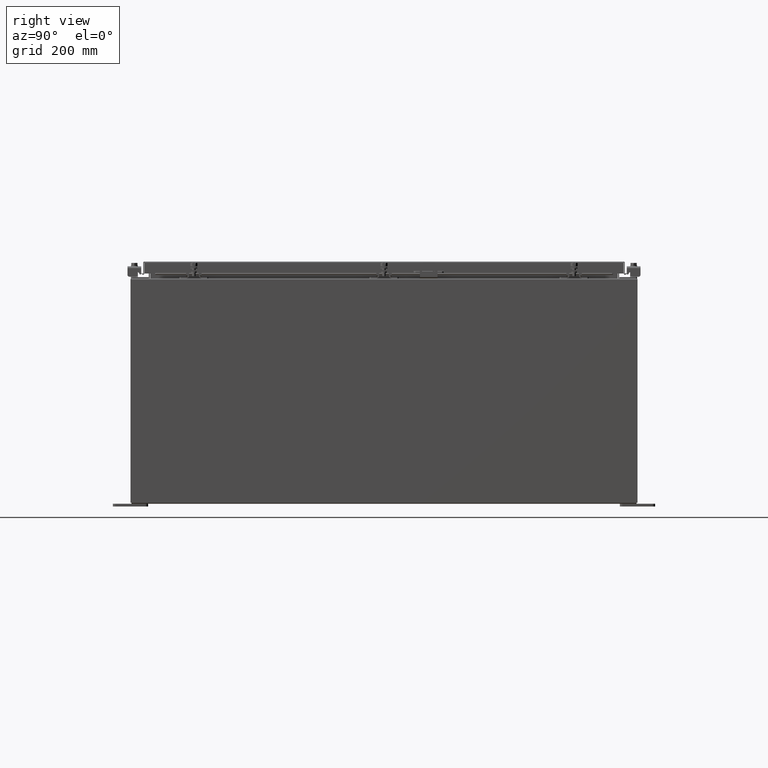
[diagram: clean part render]
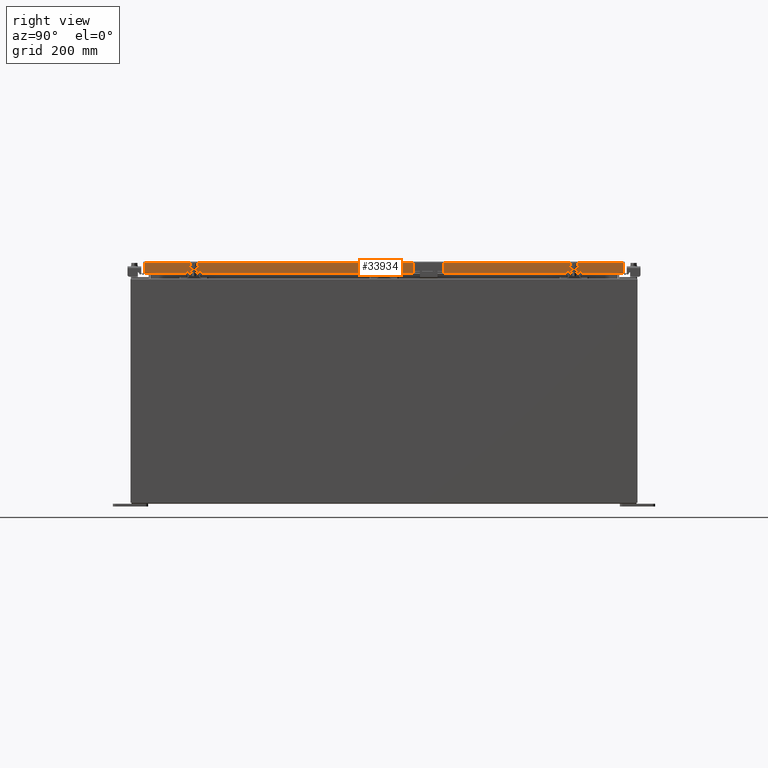
[diagram: same view with one face highlighted and labeled with its STEP entity id]
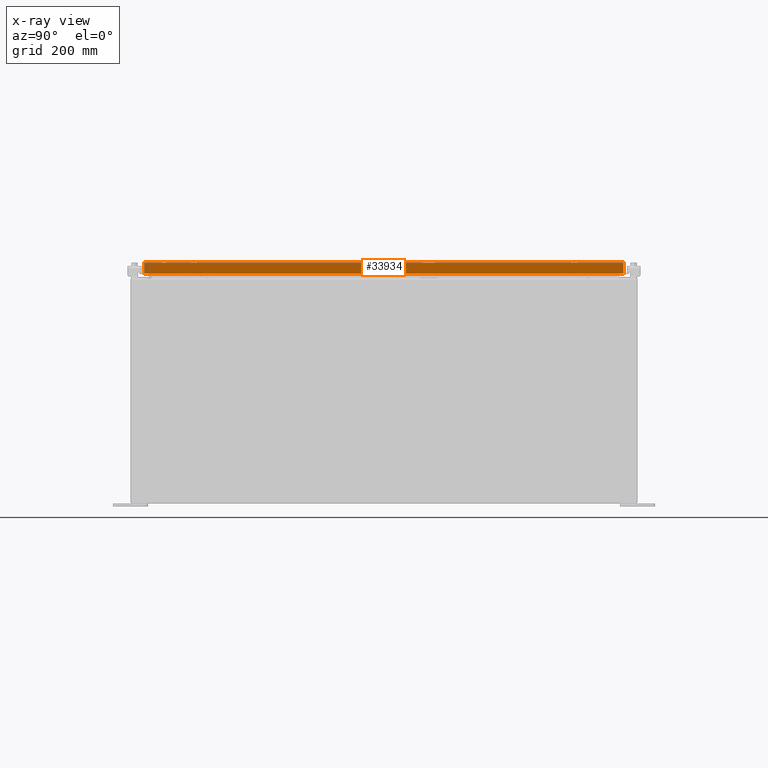
[diagram: x-ray of the same camera — body ghosted, the highlighted face saturated]
A machine part, right view. The second image highlights one B-rep face of the part: STEP entity #33934.
The next image is the same camera in x-ray: the body ghosted, the highlighted face saturated — about 0% of this face is hidden behind the body in this view.
In plain terms, the highlighted planar face has unit normal (1, 0, 0).
Its self-contained STEP definition (entity closure, byte-faithful):
#582 = CARTESIAN_POINT ( 'NONE',  ( 14.07799999999999400, 17.00515786437626900, -0.08770000000000007000 ) ) ;
#1304 = EDGE_CURVE ( 'NONE', #22524, #9837, #37705, .T. ) ;
#3148 = DIRECTION ( 'NONE',  ( -2.818880942772360500E-015, -6.982962677686269100E-015, 1.000000000000000000 ) ) ;
#4106 = LINE ( 'NONE', #15079, #11231 ) ;
#4121 = EDGE_CURVE ( 'NONE', #41310, #36156, #8388, .T. ) ;
#5482 = CARTESIAN_POINT ( 'NONE',  ( 14.07799999999998700, 16.25515786437628000, -0.8500000000000016400 ) ) ;
#7452 = AXIS2_PLACEMENT_3D ( 'NONE', #22898, #32721, #12801 ) ;
#8388 = LINE ( 'NONE', #27668, #18074 ) ;
#9306 = CARTESIAN_POINT ( 'NONE',  ( 14.07799999999998700, 16.25515786437627600, -0.8500000000000016400 ) ) ;
#9837 = VERTEX_POINT ( 'NONE', #32822 ) ;
#10901 = VECTOR ( 'NONE', #37356, 39.37007874015748100 ) ;
#11231 = VECTOR ( 'NONE', #38278, 39.37007874015748100 ) ;
#12801 = DIRECTION ( 'NONE',  ( 2.818880942772360100E-015, 0.0000000000000000000, -1.000000000000000000 ) ) ;
#13051 = CARTESIAN_POINT ( 'NONE',  ( 14.07799999999999400, -17.00515786437626900, -0.08770000000000007000 ) ) ;
#13076 = VECTOR ( 'NONE', #3148, 39.37007874015748100 ) ;
#14305 = ORIENTED_EDGE ( 'NONE', *, *, #38413, .F. ) ;
#14529 = CARTESIAN_POINT ( 'NONE',  ( 14.07799999999999600, -17.09400000000000100, -0.8499999999999996400 ) ) ;
#15079 = CARTESIAN_POINT ( 'NONE',  ( 14.07799999999999400, 0.0000000000000000000, -0.08770000000000007000 ) ) ;
#17212 = ORIENTED_EDGE ( 'NONE', *, *, #1304, .F. ) ;
#18074 = VECTOR ( 'NONE', #32000, 39.37007874015748100 ) ;
#19008 = ORIENTED_EDGE ( 'NONE', *, *, #28968, .F. ) ;
#19180 = EDGE_CURVE ( 'NONE', #41310, #22524, #19387, .T. ) ;
#19387 = LINE ( 'NONE', #14529, #10901 ) ;
#22259 = EDGE_LOOP ( 'NONE', ( #14305, #19008, #17212, #32618, #32697, #28660 ) ) ;
#22524 = VERTEX_POINT ( 'NONE', #9306 ) ;
#22898 = CARTESIAN_POINT ( 'NONE',  ( 14.07799999999999400, 0.0000000000000000000, 3.994501956836084300E-014 ) ) ;
#24605 = CARTESIAN_POINT ( 'NONE',  ( 14.07799999999999600, -17.09400000000000100, -0.8499999999999996400 ) ) ;
#24937 = DIRECTION ( 'NONE',  ( 0.0000000000000000000, -1.000000000000000000, 0.0000000000000000000 ) ) ;
#25987 = DIRECTION ( 'NONE',  ( 0.0000000000000000000, -1.000000000000000000, 0.0000000000000000000 ) ) ;
#27668 = CARTESIAN_POINT ( 'NONE',  ( 14.07799999999999400, 17.00515786437627200, 1.586914022634635000E-013 ) ) ;
#28660 = ORIENTED_EDGE ( 'NONE', *, *, #31096, .T. ) ;
#28968 = EDGE_CURVE ( 'NONE', #9837, #42706, #29688, .T. ) ;
#29481 = PLANE ( 'NONE',  #7452 ) ;
#29688 = LINE ( 'NONE', #24605, #37353 ) ;
#30773 = LINE ( 'NONE', #36805, #13076 ) ;
#31096 = EDGE_CURVE ( 'NONE', #36156, #36531, #4106, .T. ) ;
#32000 = DIRECTION ( 'NONE',  ( -2.818880942772360500E-015, -6.982962677686269100E-015, 1.000000000000000000 ) ) ;
#32618 = ORIENTED_EDGE ( 'NONE', *, *, #19180, .F. ) ;
#32697 = ORIENTED_EDGE ( 'NONE', *, *, #4121, .T. ) ;
#32721 = DIRECTION ( 'NONE',  ( 1.000000000000000000, 0.0000000000000000000, 2.818880942772360100E-015 ) ) ;
#32822 = CARTESIAN_POINT ( 'NONE',  ( 14.07799999999998700, -16.25515786437626500, -0.8500000000000016400 ) ) ;
#33934 = ADVANCED_FACE ( 'NONE', ( #38156 ), #29481, .T. ) ;
#36156 = VERTEX_POINT ( 'NONE', #582 ) ;
#36531 = VERTEX_POINT ( 'NONE', #13051 ) ;
#36805 = CARTESIAN_POINT ( 'NONE',  ( 14.07799999999999400, -17.00515786437626900, -0.07469999999999978000 ) ) ;
#36813 = CARTESIAN_POINT ( 'NONE',  ( 14.07799999999999600, -17.00515786437626500, -0.8499999999999996400 ) ) ;
#37353 = VECTOR ( 'NONE', #24937, 39.37007874015748100 ) ;
#37356 = DIRECTION ( 'NONE',  ( 0.0000000000000000000, -1.000000000000000000, 0.0000000000000000000 ) ) ;
#37705 = LINE ( 'NONE', #5482, #38081 ) ;
#38081 = VECTOR ( 'NONE', #25987, 39.37007874015748100 ) ;
#38156 = FACE_OUTER_BOUND ( 'NONE', #22259, .T. ) ;
#38278 = DIRECTION ( 'NONE',  ( 0.0000000000000000000, -1.000000000000000000, 0.0000000000000000000 ) ) ;
#38413 = EDGE_CURVE ( 'NONE', #42706, #36531, #30773, .T. ) ;
#41310 = VERTEX_POINT ( 'NONE', #42005 ) ;
#42005 = CARTESIAN_POINT ( 'NONE',  ( 14.07799999999999600, 17.00515786437627600, -0.8499999999999996400 ) ) ;
#42706 = VERTEX_POINT ( 'NONE', #36813 ) ;